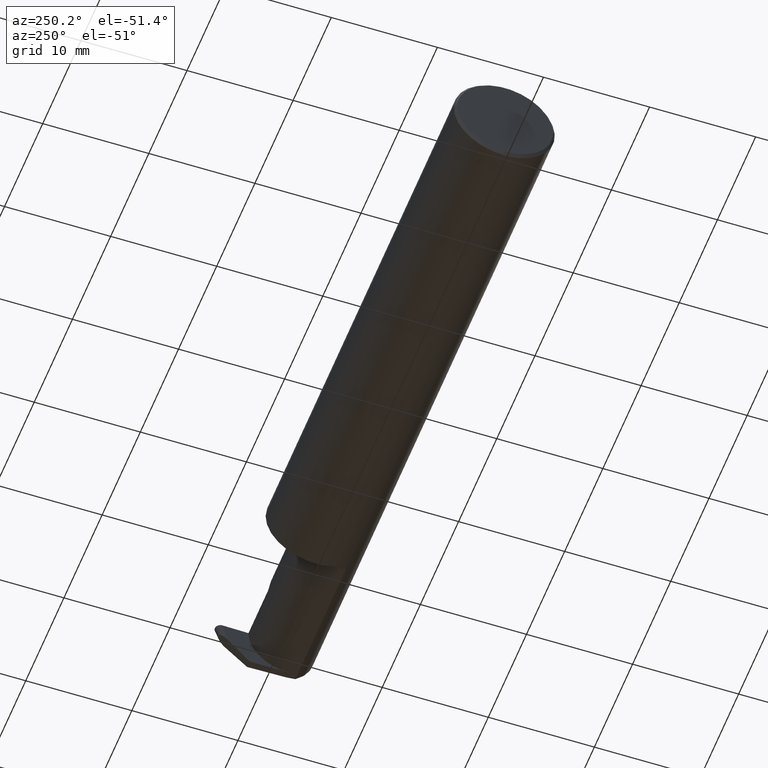
[diagram: clean part render]
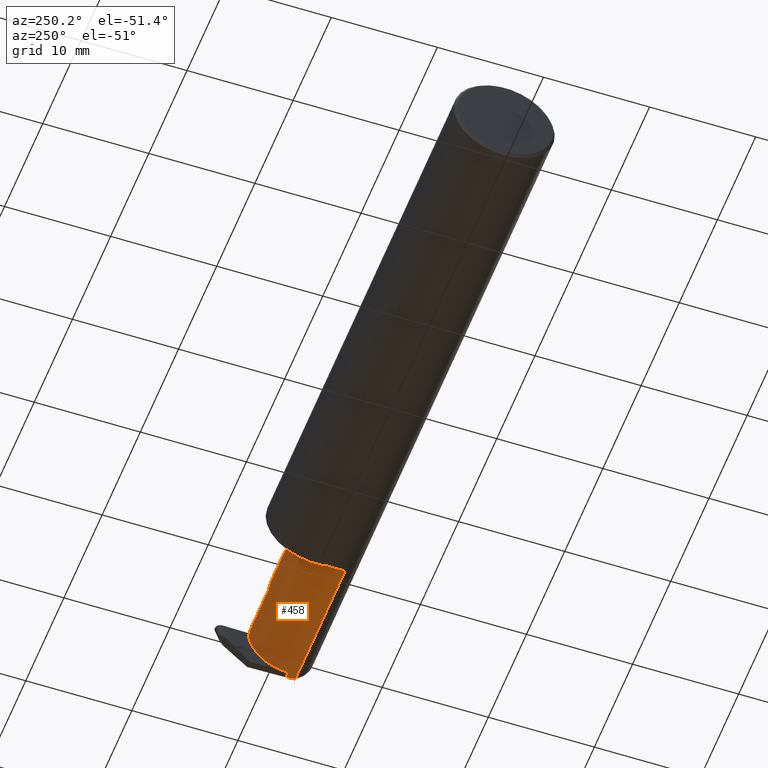
[diagram: same view with one face highlighted and labeled with its STEP entity id]
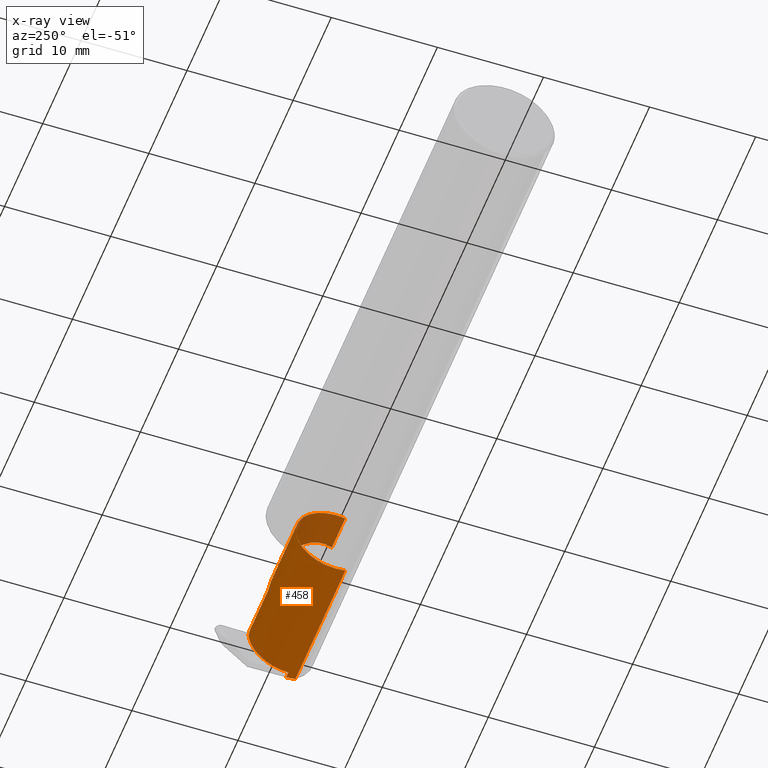
[diagram: x-ray of the same camera — body ghosted, the highlighted face saturated]
A machine part, auxiliary view. The second image highlights one B-rep face of the part: STEP entity #458.
The next image is the same camera in x-ray: the body ghosted, the highlighted face saturated — about 15% of this face is hidden behind the body in this view.
In plain terms, the highlighted cylindrical surface (partial cylindrical patch) has radius 3.81 mm, axis along (-1, 0, -0).
Its self-contained STEP definition (entity closure, byte-faithful):
#5 = DIRECTION ( 'NONE',  ( -1.000000000000000000, 2.008845683092791531E-16, -0.000000000000000000 ) ) ;
#16 = CARTESIAN_POINT ( 'NONE',  ( 2.260000000000000231, 0.06665000000000001479, 6.735557395310446214E-17 ) ) ;
#22 = CARTESIAN_POINT ( 'NONE',  ( 2.113883229301068312, -0.1172600179964008033, 0.1461167706989302539 ) ) ;
#28 = CARTESIAN_POINT ( 'NONE',  ( 2.454491755327868230, 0.06652820251299114418, -0.003487823687206694900 ) ) ;
#31 = CARTESIAN_POINT ( 'NONE',  ( 1.974999999999999867, -0.08335000000000000742, 0.000000000000000000 ) ) ;
#43 = CARTESIAN_POINT ( 'NONE',  ( 2.490236123071934315, -0.09477667630339453586, -0.1500000000000000777 ) ) ;
#51 = ORIENTED_EDGE ( 'NONE', *, *, #614, .F. ) ;
#66 = EDGE_LOOP ( 'NONE', ( #668, #250, #339, #453, #159, #51, #316, #578, #496, #395 ) ) ;
#72 = CYLINDRICAL_SURFACE ( 'NONE', #134, 0.1500000000000001055 ) ;
#86 = CARTESIAN_POINT ( 'NONE',  ( 2.454369957840859318, 0.06640640502598234296, -0.006975647374413389799 ) ) ;
#96 = EDGE_CURVE ( 'NONE', #241, #108, #387, .T. ) ;
#103 = CARTESIAN_POINT ( 'NONE',  ( 2.467080046351379341, -0.0002709026822638745764, -0.1500000000000001332 ) ) ;
#106 = CARTESIAN_POINT ( 'NONE',  ( 2.490435576448724042, -0.08335000000000064579, -0.1500000000000000500 ) ) ;
#108 = VERTEX_POINT ( 'NONE', #623 ) ;
#109 = EDGE_CURVE ( 'NONE', #380, #114, #465, .T. ) ;
#114 = VERTEX_POINT ( 'NONE', #16 ) ;
#117 = VECTOR ( 'NONE', #139, 39.37007874015748143 ) ;
#134 = AXIS2_PLACEMENT_3D ( 'NONE', #279, #5, #676 ) ;
#139 = DIRECTION ( 'NONE',  ( -1.000000000000000000, 2.008845683092791284E-16, -0.000000000000000000 ) ) ;
#140 = DIRECTION ( 'NONE',  ( 0.000000000000000000, -1.000000000000000000, 0.000000000000000000 ) ) ;
#146 = LINE ( 'NONE', #639, #117 ) ;
#154 = CARTESIAN_POINT ( 'NONE',  ( 2.454613552814877142, 0.06664999999999994540, 0.000000000000000000 ) ) ;
#159 = ORIENTED_EDGE ( 'NONE', *, *, #679, .T. ) ;
#166 = CARTESIAN_POINT ( 'NONE',  ( 2.733184360054360607, -0.08335000000000064579, -0.1500000000000000500 ) ) ;
#179 = CARTESIAN_POINT ( 'NONE',  ( 2.155331797197862720, 0.06665000000000005642, 0.1046682028021362204 ) ) ;
#191 = CARTESIAN_POINT ( 'NONE',  ( 2.490435576448724042, -0.08335000000000064579, -0.1500000000000000500 ) ) ;
#196 = CARTESIAN_POINT ( 'NONE',  ( 2.454613552814877142, 0.06664999999999994540, 0.000000000000000000 ) ) ;
#206 = AXIS2_PLACEMENT_3D ( 'NONE', #31, #463, #140 ) ;
#211 = EDGE_CURVE ( 'NONE', #464, #421, #413, .T. ) ;
#226 = EDGE_CURVE ( 'NONE', #108, #292, #146, .T. ) ;
#237 = CARTESIAN_POINT ( 'NONE',  ( 2.217482999999999649, -0.1172600179964004702, 0.1461167706989304760 ) ) ;
#241 = VERTEX_POINT ( 'NONE', #349 ) ;
#250 = ORIENTED_EDGE ( 'NONE', *, *, #628, .F. ) ;
#261 = CARTESIAN_POINT ( 'NONE',  ( 2.490083369990258255, -0.1061291577212410131, -0.1486999626928447171 ) ) ;
#279 = CARTESIAN_POINT ( 'NONE',  ( 1.949999999999999956, -0.08335000000000000742, 0.000000000000000000 ) ) ;
#292 = VERTEX_POINT ( 'NONE', #487 ) ;
#310 = B_SPLINE_CURVE_WITH_KNOTS ( 'NONE', 3,
 ( #343, #86, #28, #196 ),
 .UNSPECIFIED., .F., .F.,
 ( 4, 4 ),
 ( 0.000000000000000000, 1.000000000000000000 ),
 .UNSPECIFIED. ) ;
#316 = ORIENTED_EDGE ( 'NONE', *, *, #226, .F. ) ;
#326 = VERTEX_POINT ( 'NONE', #154 ) ;
#334 = CARTESIAN_POINT ( 'NONE',  ( 2.464993749086574315, 0.06048930266824217861, -0.09334019187383170435 ) ) ;
#339 = ORIENTED_EDGE ( 'NONE', *, *, #705, .T. ) ;
#343 = CARTESIAN_POINT ( 'NONE',  ( 2.454248160353850849, 0.06628460753897352786, -0.01046347106162008600 ) ) ;
#349 = CARTESIAN_POINT ( 'NONE',  ( 2.467183016265471096, -0.08335000000000011844, -0.1500000000000000500 ) ) ;
#354 = LINE ( 'NONE', #237, #675 ) ;
#363 = EDGE_CURVE ( 'NONE', #464, #677, #518, .T. ) ;
#380 = VERTEX_POINT ( 'NONE', #540 ) ;
#387 =( BOUNDED_CURVE ( )  B_SPLINE_CURVE ( 3, ( #601, #103, #334, #446 ),
 .UNSPECIFIED., .F., .T. ) 
 B_SPLINE_CURVE_WITH_KNOTS ( ( 4, 4 ),
 ( 3.176499238629685529, 4.677482395344796373 ),
 .UNSPECIFIED. ) 
 CURVE ( )  GEOMETRIC_REPRESENTATION_ITEM ( )  RATIONAL_B_SPLINE_CURVE ( ( 1.000000000000000000, 0.8209024677461164154, 0.8209024677461164154, 1.000000000000000000 ) ) 
 REPRESENTATION_ITEM ( '' )  );
#395 = ORIENTED_EDGE ( 'NONE', *, *, #363, .F. ) ;
#402 = CARTESIAN_POINT ( 'NONE',  ( 1.974999999999999867, -0.1172600179964006506, 0.1461167706989304205 ) ) ;
#406 = VECTOR ( 'NONE', #520, 39.37007874015748143 ) ;
#413 = LINE ( 'NONE', #470, #687 ) ;
#421 = VERTEX_POINT ( 'NONE', #698 ) ;
#446 = CARTESIAN_POINT ( 'NONE',  ( 2.462045076546083955, 0.06628460753900314306, -0.01046347106162268982 ) ) ;
#447 = EDGE_CURVE ( 'NONE', #677, #241, #516, .T. ) ;
#453 = ORIENTED_EDGE ( 'NONE', *, *, #109, .T. ) ;
#458 = ADVANCED_FACE ( 'NONE', ( #503 ), #72, .T. ) ;
#463 = DIRECTION ( 'NONE',  ( -1.000000000000000000, 2.008845683092791531E-16, -0.000000000000000000 ) ) ;
#464 = VERTEX_POINT ( 'NONE', #553 ) ;
#465 =( BOUNDED_CURVE ( )  B_SPLINE_CURVE ( 3, ( #22, #682, #179, #612 ),
 .UNSPECIFIED., .F., .T. ) 
 B_SPLINE_CURVE_WITH_KNOTS ( ( 4, 4 ),
 ( 6.055147272130141367, 7.853981633974482790 ),
 .UNSPECIFIED. ) 
 CURVE ( )  GEOMETRIC_REPRESENTATION_ITEM ( )  RATIONAL_B_SPLINE_CURVE ( ( 1.000000000000000000, 0.7480442670255265103, 0.7480442670255265103, 1.000000000000000000 ) ) 
 REPRESENTATION_ITEM ( '' )  );
#470 = CARTESIAN_POINT ( 'NONE',  ( 2.217482999999999649, -0.1172600179964004702, -0.1461167706989304760 ) ) ;
#473 = CARTESIAN_POINT ( 'NONE',  ( 1.949999999999999956, 0.06665000000000007030, 6.735557395310446214E-17 ) ) ;
#487 = CARTESIAN_POINT ( 'NONE',  ( 2.454248160353850849, 0.06628460753897352786, -0.01046347106162008600 ) ) ;
#496 = ORIENTED_EDGE ( 'NONE', *, *, #447, .F. ) ;
#503 = FACE_OUTER_BOUND ( 'NONE', #66, .T. ) ;
#511 = VERTEX_POINT ( 'NONE', #402 ) ;
#516 = LINE ( 'NONE', #166, #560 ) ;
#518 =( BOUNDED_CURVE ( )  B_SPLINE_CURVE ( 3, ( #536, #261, #43, #106 ),
 .UNSPECIFIED., .F., .F. ) 
 B_SPLINE_CURVE_WITH_KNOTS ( ( 4, 4 ),
 ( 0.2354267821558997942, 0.4634648172053384974 ),
 .UNSPECIFIED. ) 
 CURVE ( )  GEOMETRIC_REPRESENTATION_ITEM ( )  RATIONAL_B_SPLINE_CURVE ( ( 1.000000000000000000, 0.9956712472009933146, 0.9956712472009933146, 1.000000000000000000 ) ) 
 REPRESENTATION_ITEM ( '' )  );
#520 = DIRECTION ( 'NONE',  ( 1.000000000000000000, -2.008845683092791284E-16, 0.000000000000000000 ) ) ;
#536 = CARTESIAN_POINT ( 'NONE',  ( 2.489979300894684666, -0.1172600179964005257, -0.1461167706989304760 ) ) ;
#540 = CARTESIAN_POINT ( 'NONE',  ( 2.113883229301068312, -0.1172600179964008033, 0.1461167706989302539 ) ) ;
#553 = CARTESIAN_POINT ( 'NONE',  ( 2.489979300894684666, -0.1172600179964005257, -0.1461167706989304760 ) ) ;
#560 = VECTOR ( 'NONE', #667, 39.37007874015748143 ) ;
#578 = ORIENTED_EDGE ( 'NONE', *, *, #96, .F. ) ;
#581 = CIRCLE ( 'NONE', #206, 0.1500000000000000500 ) ;
#601 = CARTESIAN_POINT ( 'NONE',  ( 2.467183016265471096, -0.08335000000000011844, -0.1500000000000000500 ) ) ;
#612 = CARTESIAN_POINT ( 'NONE',  ( 2.260000000000000231, 0.06665000000000001479, 6.735557395310446214E-17 ) ) ;
#614 = EDGE_CURVE ( 'NONE', #292, #326, #310, .T. ) ;
#623 = CARTESIAN_POINT ( 'NONE',  ( 2.462045076546083955, 0.06628460753900314306, -0.01046347106162268982 ) ) ;
#628 = EDGE_CURVE ( 'NONE', #511, #421, #581, .T. ) ;
#629 = DIRECTION ( 'NONE',  ( 1.000000000000000000, -2.008845683092791284E-16, 0.000000000000000000 ) ) ;
#639 = CARTESIAN_POINT ( 'NONE',  ( 1.950000000000001954, 0.06628460753898562929, -0.01046347106144841603 ) ) ;
#667 = DIRECTION ( 'NONE',  ( -1.000000000000000000, -0.000000000000000000, -0.000000000000000000 ) ) ;
#668 = ORIENTED_EDGE ( 'NONE', *, *, #211, .T. ) ;
#675 = VECTOR ( 'NONE', #629, 39.37007874015748143 ) ;
#676 = DIRECTION ( 'NONE',  ( 0.000000000000000000, -1.000000000000000000, 0.000000000000000000 ) ) ;
#677 = VERTEX_POINT ( 'NONE', #191 ) ;
#679 = EDGE_CURVE ( 'NONE', #114, #326, #684, .T. ) ;
#682 = CARTESIAN_POINT ( 'NONE',  ( 2.090221225029925467, -0.01530148607434167994, 0.1697787749700728765 ) ) ;
#684 = LINE ( 'NONE', #473, #406 ) ;
#687 = VECTOR ( 'NONE', #690, 39.37007874015748143 ) ;
#690 = DIRECTION ( 'NONE',  ( -1.000000000000000000, 2.008845683092791284E-16, -0.000000000000000000 ) ) ;
#698 = CARTESIAN_POINT ( 'NONE',  ( 1.974999999999999867, -0.1172600179964006090, -0.1461167706989303927 ) ) ;
#705 = EDGE_CURVE ( 'NONE', #511, #380, #354, .T. ) ;